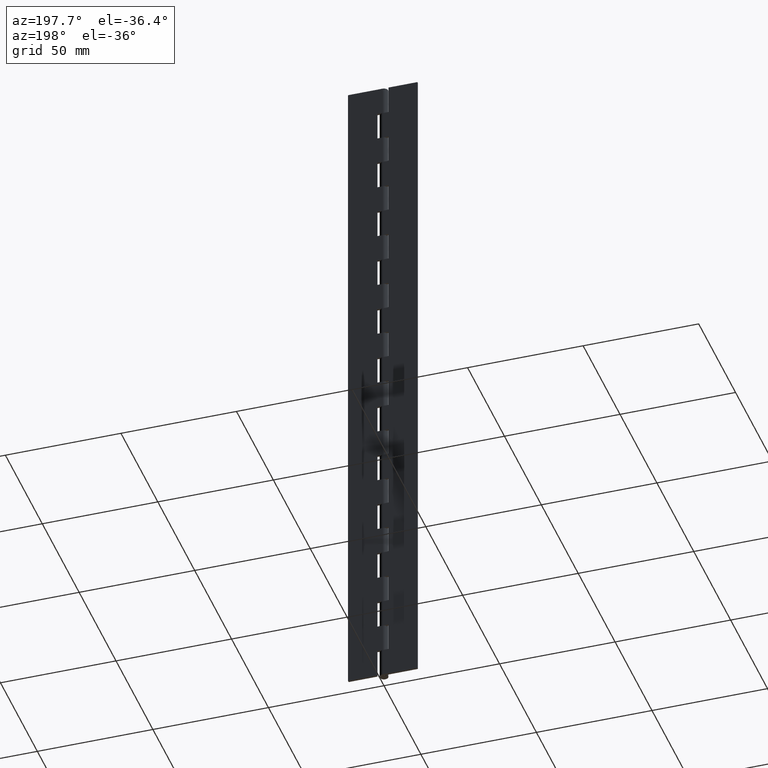
[diagram: clean part render]
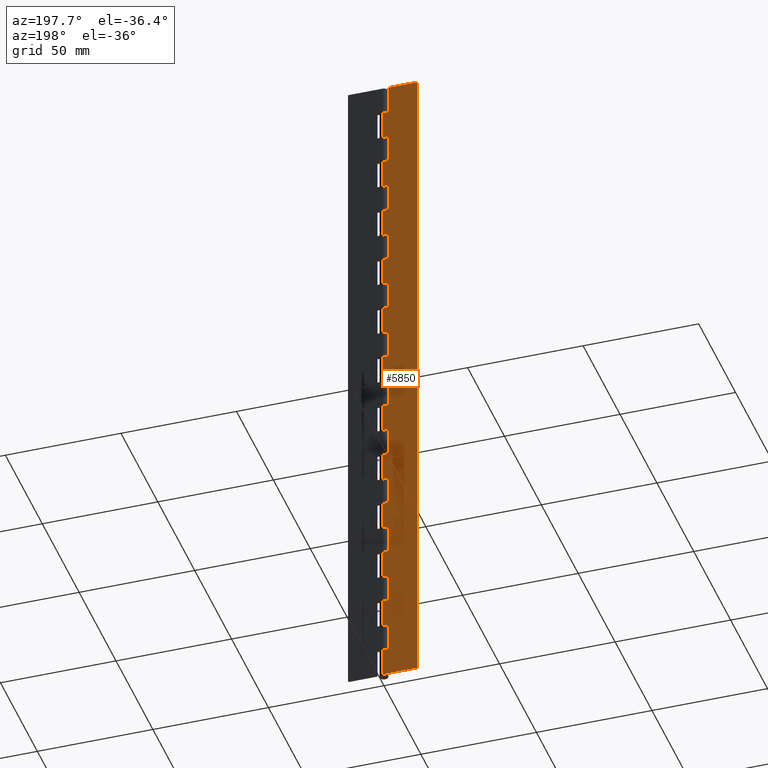
[diagram: same view with one face highlighted and labeled with its STEP entity id]
A machine part, auxiliary view. The second image highlights one B-rep face of the part: STEP entity #5850.
In plain terms, the highlighted face is a freeform B-spline surface patch.
Its self-contained STEP definition (entity closure, byte-faithful):
#3415=CARTESIAN_POINT('',(-2.499999999999800,1.799998999999940,287.500000000000000));
#3416=VERTEX_POINT('',#3415);
#3422=CARTESIAN_POINT('',(-2.499999999999800,1.799999000000000,300.0));
#3423=VERTEX_POINT('',#3422);
#3424=CARTESIAN_POINT('',(-2.499999999999800,1.799998999999940,287.500000000000000));
#3425=CARTESIAN_POINT('',(-2.499999999999800,1.799999000000000,300.0));
#3426=QUASI_UNIFORM_CURVE('',1,(#3424,#3425),.UNSPECIFIED.,.F.,.U.);
#3427=EDGE_CURVE('',#3416,#3423,#3426,.T.);
#3444=CARTESIAN_POINT('',(0.001897366339662,1.799999000000000,287.500000000000000));
#3445=VERTEX_POINT('',#3444);
#3465=CARTESIAN_POINT('',(0.001897366339662,1.799999000000000,287.500000000000000));
#3466=CARTESIAN_POINT('',(-2.499999999999800,1.799998999999940,287.500000000000000));
#3467=QUASI_UNIFORM_CURVE('',1,(#3465,#3466),.UNSPECIFIED.,.F.,.U.);
#3468=EDGE_CURVE('',#3445,#3416,#3467,.T.);
#3512=CARTESIAN_POINT('',(0.001897366339662,1.799999000000000,275.0));
#3513=VERTEX_POINT('',#3512);
#3570=CARTESIAN_POINT('',(-2.499999999999800,1.799998999999940,275.0));
#3571=VERTEX_POINT('',#3570);
#3577=CARTESIAN_POINT('',(-2.499999999999800,1.799998999999940,275.0));
#3578=CARTESIAN_POINT('',(0.001897366339662,1.799999000000000,275.0));
#3579=QUASI_UNIFORM_CURVE('',1,(#3577,#3578),.UNSPECIFIED.,.F.,.U.);
#3580=EDGE_CURVE('',#3571,#3513,#3579,.T.);
#3597=CARTESIAN_POINT('',(-2.499999999999800,1.799998999999940,262.500000000000000));
#3598=VERTEX_POINT('',#3597);
#3604=CARTESIAN_POINT('',(-2.499999999999800,1.799998999999940,262.500000000000000));
#3605=CARTESIAN_POINT('',(-2.499999999999800,1.799998999999940,275.0));
#3606=QUASI_UNIFORM_CURVE('',1,(#3604,#3605),.UNSPECIFIED.,.F.,.U.);
#3607=EDGE_CURVE('',#3598,#3571,#3606,.T.);
#3620=CARTESIAN_POINT('',(0.001897366339662,1.799999000000000,262.500000000000000));
#3621=VERTEX_POINT('',#3620);
#3641=CARTESIAN_POINT('',(0.001897366339662,1.799999000000000,262.500000000000000));
#3642=CARTESIAN_POINT('',(-2.499999999999800,1.799998999999940,262.500000000000000));
#3643=QUASI_UNIFORM_CURVE('',1,(#3641,#3642),.UNSPECIFIED.,.F.,.U.);
#3644=EDGE_CURVE('',#3621,#3598,#3643,.T.);
#3688=CARTESIAN_POINT('',(0.001897366339662,1.799999000000000,250.0));
#3689=VERTEX_POINT('',#3688);
#3746=CARTESIAN_POINT('',(-2.499999999999800,1.799998999999940,250.0));
#3747=VERTEX_POINT('',#3746);
#3753=CARTESIAN_POINT('',(-2.499999999999800,1.799998999999940,250.0));
#3754=CARTESIAN_POINT('',(0.001897366339662,1.799999000000000,250.0));
#3755=QUASI_UNIFORM_CURVE('',1,(#3753,#3754),.UNSPECIFIED.,.F.,.U.);
#3756=EDGE_CURVE('',#3747,#3689,#3755,.T.);
#3773=CARTESIAN_POINT('',(-2.499999999999800,1.799998999999940,237.500000000000000));
#3774=VERTEX_POINT('',#3773);
#3780=CARTESIAN_POINT('',(-2.499999999999800,1.799998999999940,237.500000000000000));
#3781=CARTESIAN_POINT('',(-2.499999999999800,1.799998999999940,250.0));
#3782=QUASI_UNIFORM_CURVE('',1,(#3780,#3781),.UNSPECIFIED.,.F.,.U.);
#3783=EDGE_CURVE('',#3774,#3747,#3782,.T.);
#3796=CARTESIAN_POINT('',(0.001897366339662,1.799999000000000,237.500000000000000));
#3797=VERTEX_POINT('',#3796);
#3817=CARTESIAN_POINT('',(0.001897366339662,1.799999000000000,237.500000000000000));
#3818=CARTESIAN_POINT('',(-2.499999999999800,1.799998999999940,237.500000000000000));
#3819=QUASI_UNIFORM_CURVE('',1,(#3817,#3818),.UNSPECIFIED.,.F.,.U.);
#3820=EDGE_CURVE('',#3797,#3774,#3819,.T.);
#3864=CARTESIAN_POINT('',(0.001897366339662,1.799999000000000,225.0));
#3865=VERTEX_POINT('',#3864);
#3922=CARTESIAN_POINT('',(-2.499999999999800,1.799998999999940,225.0));
#3923=VERTEX_POINT('',#3922);
#3929=CARTESIAN_POINT('',(-2.499999999999800,1.799998999999940,225.0));
#3930=CARTESIAN_POINT('',(0.001897366339662,1.799999000000000,225.0));
#3931=QUASI_UNIFORM_CURVE('',1,(#3929,#3930),.UNSPECIFIED.,.F.,.U.);
#3932=EDGE_CURVE('',#3923,#3865,#3931,.T.);
#3949=CARTESIAN_POINT('',(-2.499999999999800,1.799998999999940,212.500000000000000));
#3950=VERTEX_POINT('',#3949);
#3956=CARTESIAN_POINT('',(-2.499999999999800,1.799998999999940,212.500000000000000));
#3957=CARTESIAN_POINT('',(-2.499999999999800,1.799998999999940,225.0));
#3958=QUASI_UNIFORM_CURVE('',1,(#3956,#3957),.UNSPECIFIED.,.F.,.U.);
#3959=EDGE_CURVE('',#3950,#3923,#3958,.T.);
#3972=CARTESIAN_POINT('',(0.001897366339662,1.799999000000000,212.500000000000000));
#3973=VERTEX_POINT('',#3972);
#3993=CARTESIAN_POINT('',(0.001897366339662,1.799999000000000,212.500000000000000));
#3994=CARTESIAN_POINT('',(-2.499999999999800,1.799998999999940,212.500000000000000));
#3995=QUASI_UNIFORM_CURVE('',1,(#3993,#3994),.UNSPECIFIED.,.F.,.U.);
#3996=EDGE_CURVE('',#3973,#3950,#3995,.T.);
#4040=CARTESIAN_POINT('',(0.001897366339662,1.799999000000000,200.0));
#4041=VERTEX_POINT('',#4040);
#4098=CARTESIAN_POINT('',(-2.499999999999800,1.799998999999940,200.0));
#4099=VERTEX_POINT('',#4098);
#4105=CARTESIAN_POINT('',(-2.499999999999800,1.799998999999940,200.0));
#4106=CARTESIAN_POINT('',(0.001897366339662,1.799999000000000,200.0));
#4107=QUASI_UNIFORM_CURVE('',1,(#4105,#4106),.UNSPECIFIED.,.F.,.U.);
#4108=EDGE_CURVE('',#4099,#4041,#4107,.T.);
#4125=CARTESIAN_POINT('',(-2.499999999999800,1.799998999999940,187.500000000000000));
#4126=VERTEX_POINT('',#4125);
#4132=CARTESIAN_POINT('',(-2.499999999999800,1.799998999999940,187.500000000000000));
#4133=CARTESIAN_POINT('',(-2.499999999999800,1.799998999999940,200.0));
#4134=QUASI_UNIFORM_CURVE('',1,(#4132,#4133),.UNSPECIFIED.,.F.,.U.);
#4135=EDGE_CURVE('',#4126,#4099,#4134,.T.);
#4148=CARTESIAN_POINT('',(0.001897366339662,1.799999000000000,187.500000000000000));
#4149=VERTEX_POINT('',#4148);
#4169=CARTESIAN_POINT('',(0.001897366339662,1.799999000000000,187.500000000000000));
#4170=CARTESIAN_POINT('',(-2.499999999999800,1.799998999999940,187.500000000000000));
#4171=QUASI_UNIFORM_CURVE('',1,(#4169,#4170),.UNSPECIFIED.,.F.,.U.);
#4172=EDGE_CURVE('',#4149,#4126,#4171,.T.);
#4216=CARTESIAN_POINT('',(0.001897366339662,1.799999000000000,175.0));
#4217=VERTEX_POINT('',#4216);
#4274=CARTESIAN_POINT('',(-2.499999999999800,1.799998999999940,175.0));
#4275=VERTEX_POINT('',#4274);
#4281=CARTESIAN_POINT('',(-2.499999999999800,1.799998999999940,175.0));
#4282=CARTESIAN_POINT('',(0.001897366339662,1.799999000000000,175.0));
#4283=QUASI_UNIFORM_CURVE('',1,(#4281,#4282),.UNSPECIFIED.,.F.,.U.);
#4284=EDGE_CURVE('',#4275,#4217,#4283,.T.);
#4301=CARTESIAN_POINT('',(-2.499999999999800,1.799998999999940,162.500000000000000));
#4302=VERTEX_POINT('',#4301);
#4308=CARTESIAN_POINT('',(-2.499999999999800,1.799998999999940,162.500000000000000));
#4309=CARTESIAN_POINT('',(-2.499999999999800,1.799998999999940,175.0));
#4310=QUASI_UNIFORM_CURVE('',1,(#4308,#4309),.UNSPECIFIED.,.F.,.U.);
#4311=EDGE_CURVE('',#4302,#4275,#4310,.T.);
#4324=CARTESIAN_POINT('',(0.001897366339662,1.799999000000000,162.500000000000000));
#4325=VERTEX_POINT('',#4324);
#4345=CARTESIAN_POINT('',(0.001897366339662,1.799999000000000,162.500000000000000));
#4346=CARTESIAN_POINT('',(-2.499999999999800,1.799998999999940,162.500000000000000));
#4347=QUASI_UNIFORM_CURVE('',1,(#4345,#4346),.UNSPECIFIED.,.F.,.U.);
#4348=EDGE_CURVE('',#4325,#4302,#4347,.T.);
#4392=CARTESIAN_POINT('',(0.001897366339662,1.799999000000000,150.0));
#4393=VERTEX_POINT('',#4392);
#4450=CARTESIAN_POINT('',(-2.499999999999800,1.799998999999940,150.0));
#4451=VERTEX_POINT('',#4450);
#4457=CARTESIAN_POINT('',(-2.499999999999800,1.799998999999940,150.0));
#4458=CARTESIAN_POINT('',(0.001897366339662,1.799999000000000,150.0));
#4459=QUASI_UNIFORM_CURVE('',1,(#4457,#4458),.UNSPECIFIED.,.F.,.U.);
#4460=EDGE_CURVE('',#4451,#4393,#4459,.T.);
#4477=CARTESIAN_POINT('',(-2.499999999999800,1.799998999999940,137.500000000000000));
#4478=VERTEX_POINT('',#4477);
#4484=CARTESIAN_POINT('',(-2.499999999999800,1.799998999999940,137.500000000000000));
#4485=CARTESIAN_POINT('',(-2.499999999999800,1.799998999999940,150.0));
#4486=QUASI_UNIFORM_CURVE('',1,(#4484,#4485),.UNSPECIFIED.,.F.,.U.);
#4487=EDGE_CURVE('',#4478,#4451,#4486,.T.);
#4500=CARTESIAN_POINT('',(0.001897366339662,1.799999000000000,137.500000000000000));
#4501=VERTEX_POINT('',#4500);
#4521=CARTESIAN_POINT('',(0.001897366339662,1.799999000000000,137.500000000000000));
#4522=CARTESIAN_POINT('',(-2.499999999999800,1.799998999999940,137.500000000000000));
#4523=QUASI_UNIFORM_CURVE('',1,(#4521,#4522),.UNSPECIFIED.,.F.,.U.);
#4524=EDGE_CURVE('',#4501,#4478,#4523,.T.);
#4568=CARTESIAN_POINT('',(0.001897366339662,1.799999000000000,125.0));
#4569=VERTEX_POINT('',#4568);
#4626=CARTESIAN_POINT('',(-2.499999999999800,1.799998999999940,125.0));
#4627=VERTEX_POINT('',#4626);
#4633=CARTESIAN_POINT('',(-2.499999999999800,1.799998999999940,125.0));
#4634=CARTESIAN_POINT('',(0.001897366339662,1.799999000000000,125.0));
#4635=QUASI_UNIFORM_CURVE('',1,(#4633,#4634),.UNSPECIFIED.,.F.,.U.);
#4636=EDGE_CURVE('',#4627,#4569,#4635,.T.);
#4653=CARTESIAN_POINT('',(-2.499999999999800,1.799998999999940,112.500000000000000));
#4654=VERTEX_POINT('',#4653);
#4660=CARTESIAN_POINT('',(-2.499999999999800,1.799998999999940,112.500000000000000));
#4661=CARTESIAN_POINT('',(-2.499999999999800,1.799998999999940,125.0));
#4662=QUASI_UNIFORM_CURVE('',1,(#4660,#4661),.UNSPECIFIED.,.F.,.U.);
#4663=EDGE_CURVE('',#4654,#4627,#4662,.T.);
#4676=CARTESIAN_POINT('',(0.001897366339662,1.799999000000000,112.500000000000000));
#4677=VERTEX_POINT('',#4676);
#4697=CARTESIAN_POINT('',(0.001897366339662,1.799999000000000,112.500000000000000));
#4698=CARTESIAN_POINT('',(-2.499999999999800,1.799998999999940,112.500000000000000));
#4699=QUASI_UNIFORM_CURVE('',1,(#4697,#4698),.UNSPECIFIED.,.F.,.U.);
#4700=EDGE_CURVE('',#4677,#4654,#4699,.T.);
#4744=CARTESIAN_POINT('',(0.001897366339662,1.799999000000000,100.0));
#4745=VERTEX_POINT('',#4744);
#4802=CARTESIAN_POINT('',(-2.499999999999800,1.799998999999940,100.0));
#4803=VERTEX_POINT('',#4802);
#4809=CARTESIAN_POINT('',(-2.499999999999800,1.799998999999940,100.0));
#4810=CARTESIAN_POINT('',(0.001897366339662,1.799999000000000,100.0));
#4811=QUASI_UNIFORM_CURVE('',1,(#4809,#4810),.UNSPECIFIED.,.F.,.U.);
#4812=EDGE_CURVE('',#4803,#4745,#4811,.T.);
#4829=CARTESIAN_POINT('',(-2.499999999999800,1.799998999999940,87.500000000000000));
#4830=VERTEX_POINT('',#4829);
#4836=CARTESIAN_POINT('',(-2.499999999999800,1.799998999999940,87.500000000000000));
#4837=CARTESIAN_POINT('',(-2.499999999999800,1.799998999999940,100.0));
#4838=QUASI_UNIFORM_CURVE('',1,(#4836,#4837),.UNSPECIFIED.,.F.,.U.);
#4839=EDGE_CURVE('',#4830,#4803,#4838,.T.);
#4852=CARTESIAN_POINT('',(0.001897366339662,1.799999000000000,87.500000000000000));
#4853=VERTEX_POINT('',#4852);
#4873=CARTESIAN_POINT('',(0.001897366339662,1.799999000000000,87.500000000000000));
#4874=CARTESIAN_POINT('',(-2.499999999999800,1.799998999999940,87.500000000000000));
#4875=QUASI_UNIFORM_CURVE('',1,(#4873,#4874),.UNSPECIFIED.,.F.,.U.);
#4876=EDGE_CURVE('',#4853,#4830,#4875,.T.);
#4920=CARTESIAN_POINT('',(0.001897366339662,1.799999000000000,75.0));
#4921=VERTEX_POINT('',#4920);
#4978=CARTESIAN_POINT('',(-2.499999999999800,1.799998999999940,75.0));
#4979=VERTEX_POINT('',#4978);
#4985=CARTESIAN_POINT('',(-2.499999999999800,1.799998999999940,75.0));
#4986=CARTESIAN_POINT('',(0.001897366339662,1.799999000000000,75.0));
#4987=QUASI_UNIFORM_CURVE('',1,(#4985,#4986),.UNSPECIFIED.,.F.,.U.);
#4988=EDGE_CURVE('',#4979,#4921,#4987,.T.);
#5005=CARTESIAN_POINT('',(-2.499999999999800,1.799998999999940,62.500000000000000));
#5006=VERTEX_POINT('',#5005);
#5012=CARTESIAN_POINT('',(-2.499999999999800,1.799998999999940,62.500000000000000));
#5013=CARTESIAN_POINT('',(-2.499999999999800,1.799998999999940,75.0));
#5014=QUASI_UNIFORM_CURVE('',1,(#5012,#5013),.UNSPECIFIED.,.F.,.U.);
#5015=EDGE_CURVE('',#5006,#4979,#5014,.T.);
#5028=CARTESIAN_POINT('',(0.001897366339662,1.799999000000000,62.500000000000000));
#5029=VERTEX_POINT('',#5028);
#5049=CARTESIAN_POINT('',(0.001897366339662,1.799999000000000,62.500000000000000));
#5050=CARTESIAN_POINT('',(-2.499999999999800,1.799998999999940,62.500000000000000));
#5051=QUASI_UNIFORM_CURVE('',1,(#5049,#5050),.UNSPECIFIED.,.F.,.U.);
#5052=EDGE_CURVE('',#5029,#5006,#5051,.T.);
#5096=CARTESIAN_POINT('',(0.001897366339662,1.799999000000000,50.0));
#5097=VERTEX_POINT('',#5096);
#5154=CARTESIAN_POINT('',(-2.499999999999800,1.799998999999940,50.0));
#5155=VERTEX_POINT('',#5154);
#5161=CARTESIAN_POINT('',(-2.499999999999800,1.799998999999940,50.0));
#5162=CARTESIAN_POINT('',(0.001897366339662,1.799999000000000,50.0));
#5163=QUASI_UNIFORM_CURVE('',1,(#5161,#5162),.UNSPECIFIED.,.F.,.U.);
#5164=EDGE_CURVE('',#5155,#5097,#5163,.T.);
#5181=CARTESIAN_POINT('',(-2.499999999999800,1.799998999999940,37.500000000000000));
#5182=VERTEX_POINT('',#5181);
#5188=CARTESIAN_POINT('',(-2.499999999999800,1.799998999999940,37.500000000000000));
#5189=CARTESIAN_POINT('',(-2.499999999999800,1.799998999999940,50.0));
#5190=QUASI_UNIFORM_CURVE('',1,(#5188,#5189),.UNSPECIFIED.,.F.,.U.);
#5191=EDGE_CURVE('',#5182,#5155,#5190,.T.);
#5204=CARTESIAN_POINT('',(0.001897366339662,1.799999000000000,37.500000000000000));
#5205=VERTEX_POINT('',#5204);
#5225=CARTESIAN_POINT('',(0.001897366339662,1.799999000000000,37.500000000000000));
#5226=CARTESIAN_POINT('',(-2.499999999999800,1.799998999999940,37.500000000000000));
#5227=QUASI_UNIFORM_CURVE('',1,(#5225,#5226),.UNSPECIFIED.,.F.,.U.);
#5228=EDGE_CURVE('',#5205,#5182,#5227,.T.);
#5272=CARTESIAN_POINT('',(0.001897366339662,1.799999000000000,25.0));
#5273=VERTEX_POINT('',#5272);
#5330=CARTESIAN_POINT('',(-2.499999999999800,1.799998999999940,25.0));
#5331=VERTEX_POINT('',#5330);
#5337=CARTESIAN_POINT('',(-2.499999999999800,1.799998999999940,25.0));
#5338=CARTESIAN_POINT('',(0.001897366339662,1.799999000000000,25.0));
#5339=QUASI_UNIFORM_CURVE('',1,(#5337,#5338),.UNSPECIFIED.,.F.,.U.);
#5340=EDGE_CURVE('',#5331,#5273,#5339,.T.);
#5357=CARTESIAN_POINT('',(-2.499999999999800,1.799998999999940,12.500000000000000));
#5358=VERTEX_POINT('',#5357);
#5364=CARTESIAN_POINT('',(-2.499999999999800,1.799998999999940,12.500000000000000));
#5365=CARTESIAN_POINT('',(-2.499999999999800,1.799998999999940,25.0));
#5366=QUASI_UNIFORM_CURVE('',1,(#5364,#5365),.UNSPECIFIED.,.F.,.U.);
#5367=EDGE_CURVE('',#5358,#5331,#5366,.T.);
#5380=CARTESIAN_POINT('',(0.001897366339662,1.799999000000000,12.500000000000000));
#5381=VERTEX_POINT('',#5380);
#5401=CARTESIAN_POINT('',(0.001897366339662,1.799999000000000,12.500000000000000));
#5402=CARTESIAN_POINT('',(-2.499999999999800,1.799998999999940,12.500000000000000));
#5403=QUASI_UNIFORM_CURVE('',1,(#5401,#5402),.UNSPECIFIED.,.F.,.U.);
#5404=EDGE_CURVE('',#5381,#5358,#5403,.T.);
#5450=CARTESIAN_POINT('',(-14.999999999999799,1.799999000000000,0.0));
#5451=VERTEX_POINT('',#5450);
#5457=CARTESIAN_POINT('',(0.001897366339662,1.799999000000000,0.0));
#5458=VERTEX_POINT('',#5457);
#5459=CARTESIAN_POINT('',(-14.999999999999799,1.799999000000000,0.0));
#5460=CARTESIAN_POINT('',(0.001897366339662,1.799999000000000,0.0));
#5461=QUASI_UNIFORM_CURVE('',1,(#5459,#5460),.UNSPECIFIED.,.F.,.U.);
#5462=EDGE_CURVE('',#5451,#5458,#5461,.T.);
#5534=CARTESIAN_POINT('',(-14.999999999999799,1.799999000000000,300.0));
#5535=VERTEX_POINT('',#5534);
#5536=CARTESIAN_POINT('',(-14.999999999999799,1.799999000000000,300.0));
#5537=CARTESIAN_POINT('',(-2.499999999999800,1.799999000000000,300.0));
#5538=QUASI_UNIFORM_CURVE('',1,(#5536,#5537),.UNSPECIFIED.,.F.,.U.);
#5539=EDGE_CURVE('',#5535,#3423,#5538,.T.);
#5737=CARTESIAN_POINT('',(0.001897366339662,1.799999000000000,12.500000000000000));
#5738=CARTESIAN_POINT('',(0.001897366339662,1.799999000000000,0.0));
#5739=QUASI_UNIFORM_CURVE('',1,(#5737,#5738),.UNSPECIFIED.,.F.,.U.);
#5740=EDGE_CURVE('',#5381,#5458,#5739,.T.);
#5745=CARTESIAN_POINT('',(-15.749344744371870,1.799999000000000,-14.984999418541790));
#5746=CARTESIAN_POINT('',(-15.749344744371870,1.799999000000000,314.985007465168910));
#5747=CARTESIAN_POINT('',(0.751242513093972,1.799999000000000,-14.984999418541790));
#5748=CARTESIAN_POINT('',(0.751242513093972,1.799999000000000,314.985007465168910));
#5749=B_SPLINE_SURFACE_WITH_KNOTS('',1,1,((#5745,#5747),(#5746,#5748)),.UNSPECIFIED.,.F.,.F.,.U.,(2,2),(2,2),(0.0,329.970006883710710),(0.0,16.500587257465838),.UNSPECIFIED.);
#5750=ORIENTED_EDGE('',*,*,#3468,.F.);
#5751=CARTESIAN_POINT('',(0.001897366339662,1.799999000000000,287.500000000000000));
#5752=CARTESIAN_POINT('',(0.001897366339662,1.799999000000000,275.0));
#5753=QUASI_UNIFORM_CURVE('',1,(#5751,#5752),.UNSPECIFIED.,.F.,.U.);
#5754=EDGE_CURVE('',#3445,#3513,#5753,.T.);
#5755=ORIENTED_EDGE('',*,*,#5754,.T.);
#5756=ORIENTED_EDGE('',*,*,#3580,.F.);
#5757=ORIENTED_EDGE('',*,*,#3607,.F.);
#5758=ORIENTED_EDGE('',*,*,#3644,.F.);
#5759=CARTESIAN_POINT('',(0.001897366339662,1.799999000000000,262.500000000000000));
#5760=CARTESIAN_POINT('',(0.001897366339662,1.799999000000000,250.0));
#5761=QUASI_UNIFORM_CURVE('',1,(#5759,#5760),.UNSPECIFIED.,.F.,.U.);
#5762=EDGE_CURVE('',#3621,#3689,#5761,.T.);
#5763=ORIENTED_EDGE('',*,*,#5762,.T.);
#5764=ORIENTED_EDGE('',*,*,#3756,.F.);
#5765=ORIENTED_EDGE('',*,*,#3783,.F.);
#5766=ORIENTED_EDGE('',*,*,#3820,.F.);
#5767=CARTESIAN_POINT('',(0.001897366339662,1.799999000000000,237.500000000000000));
#5768=CARTESIAN_POINT('',(0.001897366339662,1.799999000000000,225.0));
#5769=QUASI_UNIFORM_CURVE('',1,(#5767,#5768),.UNSPECIFIED.,.F.,.U.);
#5770=EDGE_CURVE('',#3797,#3865,#5769,.T.);
#5771=ORIENTED_EDGE('',*,*,#5770,.T.);
#5772=ORIENTED_EDGE('',*,*,#3932,.F.);
#5773=ORIENTED_EDGE('',*,*,#3959,.F.);
#5774=ORIENTED_EDGE('',*,*,#3996,.F.);
#5775=CARTESIAN_POINT('',(0.001897366339662,1.799999000000000,212.500000000000000));
#5776=CARTESIAN_POINT('',(0.001897366339662,1.799999000000000,200.0));
#5777=QUASI_UNIFORM_CURVE('',1,(#5775,#5776),.UNSPECIFIED.,.F.,.U.);
#5778=EDGE_CURVE('',#3973,#4041,#5777,.T.);
#5779=ORIENTED_EDGE('',*,*,#5778,.T.);
#5780=ORIENTED_EDGE('',*,*,#4108,.F.);
#5781=ORIENTED_EDGE('',*,*,#4135,.F.);
#5782=ORIENTED_EDGE('',*,*,#4172,.F.);
#5783=CARTESIAN_POINT('',(0.001897366339662,1.799999000000000,187.500000000000000));
#5784=CARTESIAN_POINT('',(0.001897366339662,1.799999000000000,175.0));
#5785=QUASI_UNIFORM_CURVE('',1,(#5783,#5784),.UNSPECIFIED.,.F.,.U.);
#5786=EDGE_CURVE('',#4149,#4217,#5785,.T.);
#5787=ORIENTED_EDGE('',*,*,#5786,.T.);
#5788=ORIENTED_EDGE('',*,*,#4284,.F.);
#5789=ORIENTED_EDGE('',*,*,#4311,.F.);
#5790=ORIENTED_EDGE('',*,*,#4348,.F.);
#5791=CARTESIAN_POINT('',(0.001897366339662,1.799999000000000,162.500000000000000));
#5792=CARTESIAN_POINT('',(0.001897366339662,1.799999000000000,150.0));
#5793=QUASI_UNIFORM_CURVE('',1,(#5791,#5792),.UNSPECIFIED.,.F.,.U.);
#5794=EDGE_CURVE('',#4325,#4393,#5793,.T.);
#5795=ORIENTED_EDGE('',*,*,#5794,.T.);
#5796=ORIENTED_EDGE('',*,*,#4460,.F.);
#5797=ORIENTED_EDGE('',*,*,#4487,.F.);
#5798=ORIENTED_EDGE('',*,*,#4524,.F.);
#5799=CARTESIAN_POINT('',(0.001897366339662,1.799999000000000,137.500000000000000));
#5800=CARTESIAN_POINT('',(0.001897366339662,1.799999000000000,125.0));
#5801=QUASI_UNIFORM_CURVE('',1,(#5799,#5800),.UNSPECIFIED.,.F.,.U.);
#5802=EDGE_CURVE('',#4501,#4569,#5801,.T.);
#5803=ORIENTED_EDGE('',*,*,#5802,.T.);
#5804=ORIENTED_EDGE('',*,*,#4636,.F.);
#5805=ORIENTED_EDGE('',*,*,#4663,.F.);
#5806=ORIENTED_EDGE('',*,*,#4700,.F.);
#5807=CARTESIAN_POINT('',(0.001897366339662,1.799999000000000,112.500000000000000));
#5808=CARTESIAN_POINT('',(0.001897366339662,1.799999000000000,100.0));
#5809=QUASI_UNIFORM_CURVE('',1,(#5807,#5808),.UNSPECIFIED.,.F.,.U.);
#5810=EDGE_CURVE('',#4677,#4745,#5809,.T.);
#5811=ORIENTED_EDGE('',*,*,#5810,.T.);
#5812=ORIENTED_EDGE('',*,*,#4812,.F.);
#5813=ORIENTED_EDGE('',*,*,#4839,.F.);
#5814=ORIENTED_EDGE('',*,*,#4876,.F.);
#5815=CARTESIAN_POINT('',(0.001897366339662,1.799999000000000,87.500000000000000));
#5816=CARTESIAN_POINT('',(0.001897366339662,1.799999000000000,75.0));
#5817=QUASI_UNIFORM_CURVE('',1,(#5815,#5816),.UNSPECIFIED.,.F.,.U.);
#5818=EDGE_CURVE('',#4853,#4921,#5817,.T.);
#5819=ORIENTED_EDGE('',*,*,#5818,.T.);
#5820=ORIENTED_EDGE('',*,*,#4988,.F.);
#5821=ORIENTED_EDGE('',*,*,#5015,.F.);
#5822=ORIENTED_EDGE('',*,*,#5052,.F.);
#5823=CARTESIAN_POINT('',(0.001897366339662,1.799999000000000,62.500000000000000));
#5824=CARTESIAN_POINT('',(0.001897366339662,1.799999000000000,50.0));
#5825=QUASI_UNIFORM_CURVE('',1,(#5823,#5824),.UNSPECIFIED.,.F.,.U.);
#5826=EDGE_CURVE('',#5029,#5097,#5825,.T.);
#5827=ORIENTED_EDGE('',*,*,#5826,.T.);
#5828=ORIENTED_EDGE('',*,*,#5164,.F.);
#5829=ORIENTED_EDGE('',*,*,#5191,.F.);
#5830=ORIENTED_EDGE('',*,*,#5228,.F.);
#5831=CARTESIAN_POINT('',(0.001897366339662,1.799999000000000,37.500000000000000));
#5832=CARTESIAN_POINT('',(0.001897366339662,1.799999000000000,25.0));
#5833=QUASI_UNIFORM_CURVE('',1,(#5831,#5832),.UNSPECIFIED.,.F.,.U.);
#5834=EDGE_CURVE('',#5205,#5273,#5833,.T.);
#5835=ORIENTED_EDGE('',*,*,#5834,.T.);
#5836=ORIENTED_EDGE('',*,*,#5340,.F.);
#5837=ORIENTED_EDGE('',*,*,#5367,.F.);
#5838=ORIENTED_EDGE('',*,*,#5404,.F.);
#5839=ORIENTED_EDGE('',*,*,#5740,.T.);
#5840=ORIENTED_EDGE('',*,*,#5462,.F.);
#5841=CARTESIAN_POINT('',(-14.999999999999799,1.799999000000000,300.0));
#5842=CARTESIAN_POINT('',(-14.999999999999799,1.799999000000000,0.0));
#5843=QUASI_UNIFORM_CURVE('',1,(#5841,#5842),.UNSPECIFIED.,.F.,.U.);
#5844=EDGE_CURVE('',#5535,#5451,#5843,.T.);
#5845=ORIENTED_EDGE('',*,*,#5844,.F.);
#5846=ORIENTED_EDGE('',*,*,#5539,.T.);
#5847=ORIENTED_EDGE('',*,*,#3427,.F.);
#5848=EDGE_LOOP('',(#5750,#5755,#5756,#5757,#5758,#5763,#5764,#5765,#5766,#5771,#5772,#5773,#5774,#5779,#5780,#5781,#5782,#5787,#5788,#5789,#5790,#5795,#5796,#5797,#5798,#5803,#5804,#5805,#5806,#5811,#5812,#5813,#5814,#5819,#5820,#5821,#5822,#5827,#5828,#5829,#5830,#5835,#5836,#5837,#5838,#5839,#5840,#5845,#5846,#5847));
#5849=FACE_OUTER_BOUND('',#5848,.T.);
#5850=ADVANCED_FACE('',(#5849),#5749,.T.);